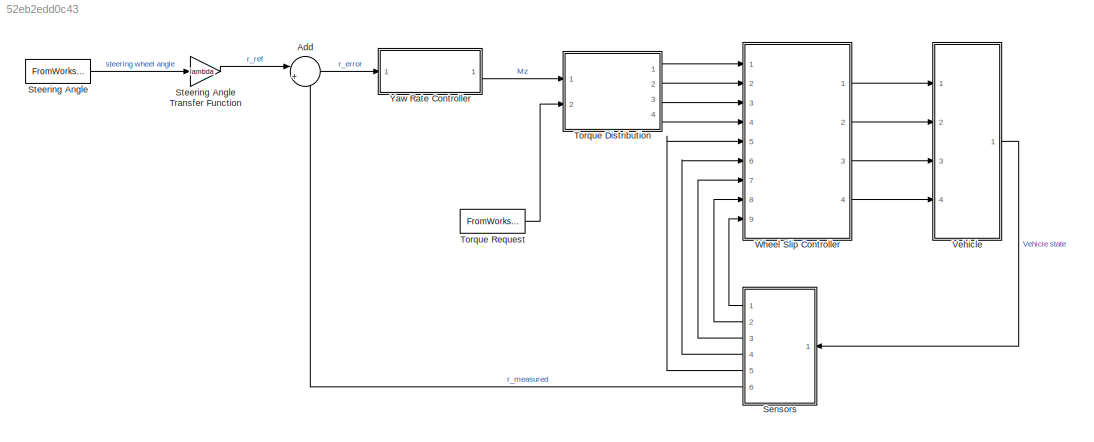
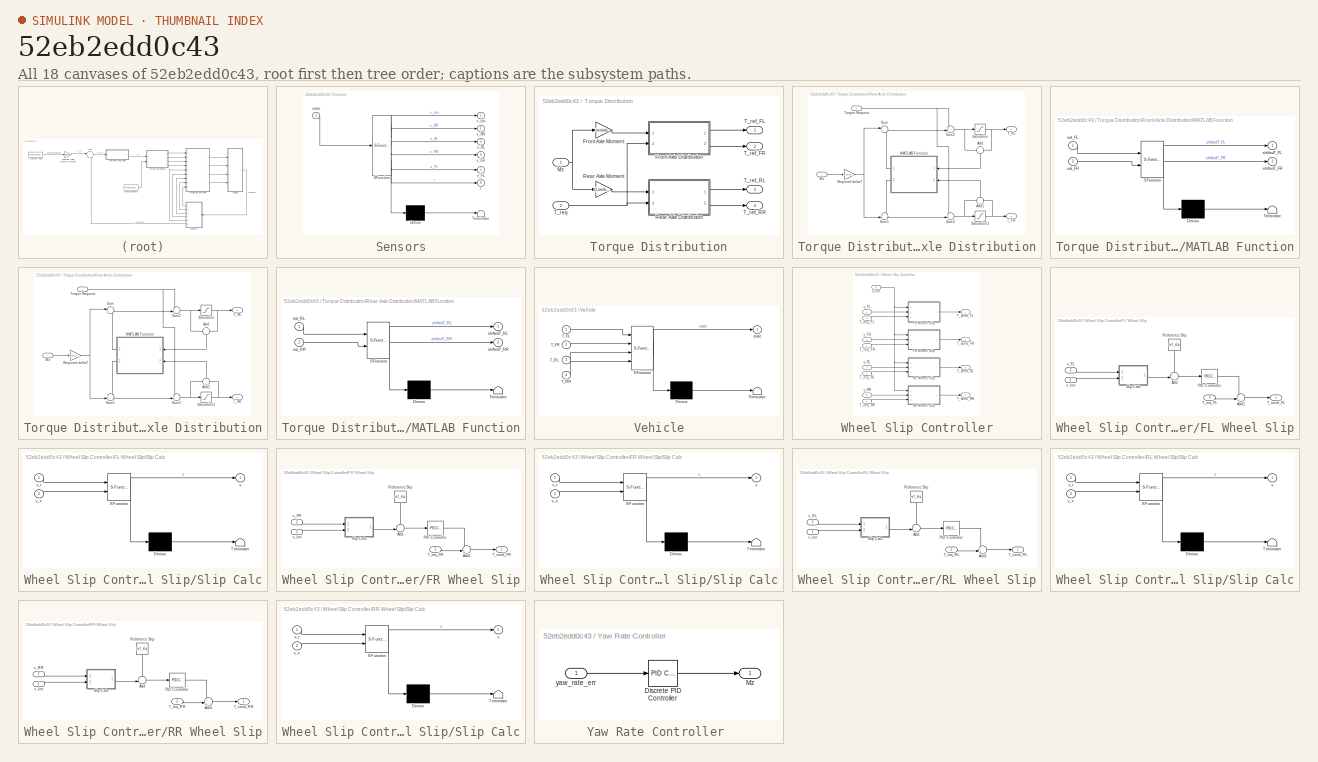
[diagram: thumbnail index - all 18 canvases of the model, root first then tree order]
MODEL slx_52eb2edd0c43
KIND model
CONFIG AbsTol = auto
CONFIG EnableMultiTasking = off
CONFIG FixedStep = auto
CONFIG MaxStep = auto
CONFIG MinStep = auto
CONFIG RelTol = 1e-3
CONFIG SampleTimeConstraint = Unconstrained
CONFIG Solver = VariableStepAuto
CONFIG SolverName = VariableStepAuto
CONFIG StartTime = 0.0
CONFIG StopTime = 10.0
BLOCK [Sum] Add
  IconShape = round
  InputSameDT = off
  Inputs = |+-
  OutDataTypeStr = Inherit: Inherit via internal rule
  Ports = [2, 1]
  SaturateOnIntegerOverflow = off
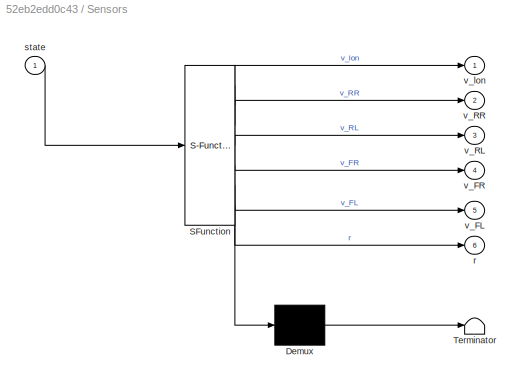
BLOCK [SubSystem] Sensors
  ErrorFcn = Stateflow.Translate.translate
  PermitHierarchicalResolution = ExplicitOnly
  Ports = [1, 6]
  RequestExecContextInheritance = off
  SFBlockType = MATLAB Function
  TreatAsAtomicUnit = on
BLOCK [Demux] Sensors/ Demux 
  Outputs = 1
  Ports = [1, 1]
BLOCK [S-Function] Sensors/ SFunction 
  EnableBusSupport = off
  FunctionName = sf_sfun
  PortCounts = [1 7]
  Ports = [1, 7]
  SFcnIsStateOwnerBlock = off
  SFunctionDeploymentMode = off
  Tag = Stateflow S-Function 8
BLOCK [Terminator] Sensors/ Terminator 
BLOCK [Outport] Sensors/r
  IconDisplay = Port number
  Port = 6
BLOCK [Inport] Sensors/state
  IconDisplay = Port number
BLOCK [Outport] Sensors/v_FL
  IconDisplay = Port number
  Port = 5
BLOCK [Outport] Sensors/v_FR
  IconDisplay = Port number
  Port = 4
BLOCK [Outport] Sensors/v_RL
  IconDisplay = Port number
  Port = 3
BLOCK [Outport] Sensors/v_RR
  IconDisplay = Port number
  Port = 2
BLOCK [Outport] Sensors/v_lon
  IconDisplay = Port number
BLOCK [FromWorkspace] Steering Angle
  Interpolate = off
  SampleTime = 0
  VariableName = simin
  ZeroCross = on
BLOCK [Gain] Steering Angle Transfer Function
  Gain = lambda
  OutDataTypeStr = Inherit: Inherit via internal rule
  ParamDataTypeStr = Inherit: Inherit via internal rule
  SaturateOnIntegerOverflow = off
BLOCK [SubSystem] Torque Distribution
  Ports = [2, 4]
  RequestExecContextInheritance = off
BLOCK [SubSystem] Torque Distribution/Front Axle Distribution
  Ports = [2, 2]
  RequestExecContextInheritance = off
BLOCK [Sum] Torque Distribution/Front Axle Distribution/Add
  IconShape = round
  InputSameDT = off
  Inputs = +|-
  OutDataTypeStr = Inherit: Inherit via internal rule
  Ports = [2, 1]
  SaturateOnIntegerOverflow = off
BLOCK [Sum] Torque Distribution/Front Axle Distribution/Add1
  IconShape = round
  InputSameDT = off
  Inputs = +|-
  OutDataTypeStr = Inherit: Inherit via internal rule
  Ports = [2, 1]
  SaturateOnIntegerOverflow = off
BLOCK [SubSystem] Torque Distribution/Front Axle Distribution/MATLAB Function
  ErrorFcn = Stateflow.Translate.translate
  PermitHierarchicalResolution = ExplicitOnly
  Ports = [2, 2]
  RequestExecContextInheritance = off
  SFBlockType = MATLAB Function
  TreatAsAtomicUnit = on
BLOCK [Demux] Torque Distribution/Front Axle Distribution/MATLAB Function/ Demux 
  Outputs = 1
  Ports = [1, 1]
BLOCK [S-Function] Torque Distribution/Front Axle Distribution/MATLAB Function/ SFunction 
  EnableBusSupport = off
  FunctionName = sf_sfun
  PortCounts = [2 3]
  Ports = [2, 3]
  SFcnIsStateOwnerBlock = off
  SFunctionDeploymentMode = off
  Tag = Stateflow S-Function 5
BLOCK [Terminator] Torque Distribution/Front Axle Distribution/MATLAB Function/ Terminator 
BLOCK [Inport] Torque Distribution/Front Axle Distribution/MATLAB Function/sat_FL
  IconDisplay = Port number
BLOCK [Inport] Torque Distribution/Front Axle Distribution/MATLAB Function/sat_FR
  IconDisplay = Port number
  Port = 2
BLOCK [Outport] Torque Distribution/Front Axle Distribution/MATLAB Function/shiftedT_FL
  IconDisplay = Port number
BLOCK [Outport] Torque Distribution/Front Axle Distribution/MATLAB Function/shiftedT_FR
  IconDisplay = Port number
  Port = 2
BLOCK [Inport] Torque Distribution/Front Axle Distribution/Mz
  IconDisplay = Port number
BLOCK [Gain] Torque Distribution/Front Axle Distribution/Required deltaT
  Gain = (Rd/(2*tr))
  OutDataTypeStr = Inherit: Inherit via internal rule
  ParamDataTypeStr = Inherit: Inherit via internal rule
  SaturateOnIntegerOverflow = off
BLOCK [Saturate] Torque Distribution/Front Axle Distribution/Saturation
  InputPortMap = u0
  LowerLimit = -1000
  Ports = [1, 1]
  UpperLimit = 1000
BLOCK [Saturate] Torque Distribution/Front Axle Distribution/Saturation1
  InputPortMap = u0
  LowerLimit = -1000
  Ports = [1, 1]
  UpperLimit = 1000
BLOCK [Sum] Torque Distribution/Front Axle Distribution/Sum
  IconShape = round
  InputSameDT = off
  Inputs = |+-
  OutDataTypeStr = Inherit: Inherit via internal rule
  Ports = [2, 1]
  SaturateOnIntegerOverflow = off
BLOCK [Sum] Torque Distribution/Front Axle Distribution/Sum1
  IconShape = round
  InputSameDT = off
  Inputs = ++|
  OutDataTypeStr = Inherit: Inherit via internal rule
  Ports = [2, 1]
  SaturateOnIntegerOverflow = off
BLOCK [Sum] Torque Distribution/Front Axle Distribution/Sum2
  IconShape = round
  InputSameDT = off
  Inputs = +-|
  OutDataTypeStr = Inherit: Inherit via internal rule
  Ports = [2, 1]
  SaturateOnIntegerOverflow = off
BLOCK [Sum] Torque Distribution/Front Axle Distribution/Sum3
  IconShape = round
  InputSameDT = off
  Inputs = ++|
  OutDataTypeStr = Inherit: Inherit via internal rule
  Ports = [2, 1]
  SaturateOnIntegerOverflow = off
BLOCK [Outport] Torque Distribution/Front Axle Distribution/T_FL
  IconDisplay = Port number
BLOCK [Outport] Torque Distribution/Front Axle Distribution/T_FR
  IconDisplay = Port number
  Port = 2
BLOCK [Inport] Torque Distribution/Front Axle Distribution/Torque Request
  IconDisplay = Port number
  Port = 2
BLOCK [Gain] Torque Distribution/Front Axle Moment
  Gain = lambda
  OutDataTypeStr = Inherit: Inherit via internal rule
  ParamDataTypeStr = Inherit: Inherit via internal rule
  SaturateOnIntegerOverflow = off
BLOCK [Inport] Torque Distribution/Mz
  IconDisplay = Port number
BLOCK [SubSystem] Torque Distribution/Rear Axle Distribution
  Ports = [2, 2]
  RequestExecContextInheritance = off
BLOCK [Sum] Torque Distribution/Rear Axle Distribution/Add
  IconShape = round
  InputSameDT = off
  Inputs = +|-
  OutDataTypeStr = Inherit: Inherit via internal rule
  Ports = [2, 1]
  SaturateOnIntegerOverflow = off
BLOCK [Sum] Torque Distribution/Rear Axle Distribution/Add1
  IconShape = round
  InputSameDT = off
  Inputs = +|-
  OutDataTypeStr = Inherit: Inherit via internal rule
  Ports = [2, 1]
  SaturateOnIntegerOverflow = off
BLOCK [SubSystem] Torque Distribution/Rear Axle Distribution/MATLAB Function
  ErrorFcn = Stateflow.Translate.translate
  PermitHierarchicalResolution = ExplicitOnly
  Ports = [2, 2]
  RequestExecContextInheritance = off
  SFBlockType = MATLAB Function
  TreatAsAtomicUnit = on
BLOCK [Demux] Torque Distribution/Rear Axle Distribution/MATLAB Function/ Demux 
  Outputs = 1
  Ports = [1, 1]
BLOCK [S-Function] Torque Distribution/Rear Axle Distribution/MATLAB Function/ SFunction 
  EnableBusSupport = off
  FunctionName = sf_sfun
  PortCounts = [2 3]
  Ports = [2, 3]
  SFcnIsStateOwnerBlock = off
  SFunctionDeploymentMode = off
  Tag = Stateflow S-Function 6
BLOCK [Terminator] Torque Distribution/Rear Axle Distribution/MATLAB Function/ Terminator 
BLOCK [Inport] Torque Distribution/Rear Axle Distribution/MATLAB Function/sat_RL
  IconDisplay = Port number
BLOCK [Inport] Torque Distribution/Rear Axle Distribution/MATLAB Function/sat_RR
  IconDisplay = Port number
  Port = 2
BLOCK [Outport] Torque Distribution/Rear Axle Distribution/MATLAB Function/shiftedT_RL
  IconDisplay = Port number
BLOCK [Outport] Torque Distribution/Rear Axle Distribution/MATLAB Function/shiftedT_RR
  IconDisplay = Port number
  Port = 2
BLOCK [Inport] Torque Distribution/Rear Axle Distribution/Mz
  IconDisplay = Port number
BLOCK [Gain] Torque Distribution/Rear Axle Distribution/Required deltaT
  Gain = (Rd/(2*tr))
  OutDataTypeStr = Inherit: Inherit via internal rule
  ParamDataTypeStr = Inherit: Inherit via internal rule
  SaturateOnIntegerOverflow = off
BLOCK [Saturate] Torque Distribution/Rear Axle Distribution/Saturation
  InputPortMap = u0
  LowerLimit = -1000
  Ports = [1, 1]
  UpperLimit = 1000
BLOCK [Saturate] Torque Distribution/Rear Axle Distribution/Saturation1
  InputPortMap = u0
  LowerLimit = -1000
  Ports = [1, 1]
  UpperLimit = 1000
BLOCK [Sum] Torque Distribution/Rear Axle Distribution/Sum
  IconShape = round
  InputSameDT = off
  Inputs = |+-
  OutDataTypeStr = Inherit: Inherit via internal rule
  Ports = [2, 1]
  SaturateOnIntegerOverflow = off
BLOCK [Sum] Torque Distribution/Rear Axle Distribution/Sum1
  IconShape = round
  InputSameDT = off
  Inputs = ++|
  OutDataTypeStr = Inherit: Inherit via internal rule
  Ports = [2, 1]
  SaturateOnIntegerOverflow = off
BLOCK [Sum] Torque Distribution/Rear Axle Distribution/Sum2
  IconShape = round
  InputSameDT = off
  Inputs = +-|
  OutDataTypeStr = Inherit: Inherit via internal rule
  Ports = [2, 1]
  SaturateOnIntegerOverflow = off
BLOCK [Sum] Torque Distribution/Rear Axle Distribution/Sum3
  IconShape = round
  InputSameDT = off
  Inputs = ++|
  OutDataTypeStr = Inherit: Inherit via internal rule
  Ports = [2, 1]
  SaturateOnIntegerOverflow = off
BLOCK [Outport] Torque Distribution/Rear Axle Distribution/T_RL
  IconDisplay = Port number
BLOCK [Outport] Torque Distribution/Rear Axle Distribution/T_RR
  IconDisplay = Port number
  Port = 2
BLOCK [Inport] Torque Distribution/Rear Axle Distribution/Torque Request
  IconDisplay = Port number
  Port = 2
BLOCK [Gain] Torque Distribution/Rear Axle Moment
  Gain = (1-lambda)
  OutDataTypeStr = Inherit: Inherit via internal rule
  ParamDataTypeStr = Inherit: Inherit via internal rule
  SaturateOnIntegerOverflow = off
BLOCK [Outport] Torque Distribution/T_ref_FL
  IconDisplay = Port number
BLOCK [Outport] Torque Distribution/T_ref_FR
  IconDisplay = Port number
  Port = 2
BLOCK [Outport] Torque Distribution/T_ref_RL
  IconDisplay = Port number
  Port = 3
BLOCK [Outport] Torque Distribution/T_ref_RR
  IconDisplay = Port number
  Port = 4
BLOCK [Inport] Torque Distribution/T_req
  IconDisplay = Port number
  Port = 2
BLOCK [FromWorkspace] Torque Request
  SampleTime = 0
  VariableName = simin
  ZeroCross = on
BLOCK [SubSystem] Vehicle
  ErrorFcn = Stateflow.Translate.translate
  PermitHierarchicalResolution = ExplicitOnly
  Ports = [4, 1]
  RequestExecContextInheritance = off
  SFBlockType = MATLAB Function
  TreatAsAtomicUnit = on
BLOCK [Demux] Vehicle/ Demux 
  Outputs = 1
  Ports = [1, 1]
BLOCK [S-Function] Vehicle/ SFunction 
  EnableBusSupport = off
  FunctionName = sf_sfun
  PortCounts = [4 2]
  Ports = [4, 2]
  SFcnIsStateOwnerBlock = off
  SFunctionDeploymentMode = off
  Tag = Stateflow S-Function 7
BLOCK [Terminator] Vehicle/ Terminator 
BLOCK [Inport] Vehicle/T_FL
  IconDisplay = Port number
BLOCK [Inport] Vehicle/T_FR
  IconDisplay = Port number
  Port = 2
BLOCK [Inport] Vehicle/T_RL
  IconDisplay = Port number
  Port = 3
BLOCK [Inport] Vehicle/T_RR
  IconDisplay = Port number
  Port = 4
BLOCK [Outport] Vehicle/state
  IconDisplay = Port number
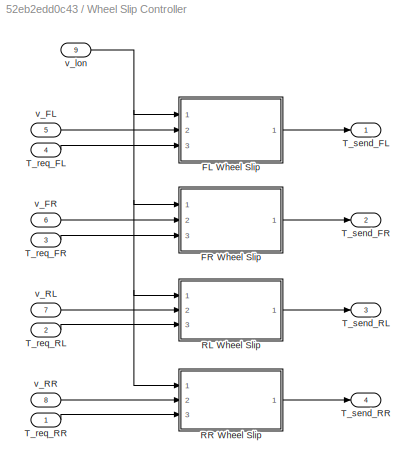
BLOCK [SubSystem] Wheel Slip Controller
  Ports = [9, 4]
  RequestExecContextInheritance = off
BLOCK [SubSystem] Wheel Slip Controller/FL Wheel Slip
  Ports = [3, 1]
  RequestExecContextInheritance = off
BLOCK [Sum] Wheel Slip Controller/FL Wheel Slip/Add
  IconShape = round
  InputSameDT = off
  Inputs = +-|
  OutDataTypeStr = Inherit: Inherit via internal rule
  Ports = [2, 1]
  SaturateOnIntegerOverflow = off
BLOCK [Sum] Wheel Slip Controller/FL Wheel Slip/Add1
  IconShape = round
  InputSameDT = off
  Inputs = ++|
  OutDataTypeStr = Inherit: Inherit via internal rule
  Ports = [2, 1]
  SaturateOnIntegerOverflow = off
BLOCK [Reference] Wheel Slip Controller/FL Wheel Slip/PID Controller  REF=simulink/Continuous/PID Controller
  Ports = [1, 1]
  SourceBlock = simulink/Continuous/PID Controller
  SourceProductBaseCode = SL
  SourceProductName = Simulink
  SourceType = PID 1dof
BLOCK [Constant] Wheel Slip Controller/FL Wheel Slip/Reference Slip 
  Value = ref_slip
BLOCK [SubSystem] Wheel Slip Controller/FL Wheel Slip/Slip Calc
  ErrorFcn = Stateflow.Translate.translate
  PermitHierarchicalResolution = ExplicitOnly
  Ports = [2, 1]
  RequestExecContextInheritance = off
  SFBlockType = MATLAB Function
  TreatAsAtomicUnit = on
BLOCK [Demux] Wheel Slip Controller/FL Wheel Slip/Slip Calc/ Demux 
  Outputs = 1
  Ports = [1, 1]
BLOCK [S-Function] Wheel Slip Controller/FL Wheel Slip/Slip Calc/ SFunction 
  EnableBusSupport = off
  FunctionName = sf_sfun
  PortCounts = [2 2]
  Ports = [2, 2]
  SFcnIsStateOwnerBlock = off
  SFunctionDeploymentMode = off
  Tag = Stateflow S-Function 2
BLOCK [Terminator] Wheel Slip Controller/FL Wheel Slip/Slip Calc/ Terminator 
BLOCK [Outport] Wheel Slip Controller/FL Wheel Slip/Slip Calc/s
  IconDisplay = Port number
BLOCK [Inport] Wheel Slip Controller/FL Wheel Slip/Slip Calc/v_t
  IconDisplay = Port number
BLOCK [Inport] Wheel Slip Controller/FL Wheel Slip/Slip Calc/v_x
  IconDisplay = Port number
  Port = 2
BLOCK [Inport] Wheel Slip Controller/FL Wheel Slip/T_req_FL
  IconDisplay = Port number
  Port = 3
BLOCK [Outport] Wheel Slip Controller/FL Wheel Slip/T_send_FL
  IconDisplay = Port number
BLOCK [Inport] Wheel Slip Controller/FL Wheel Slip/v_FL
  IconDisplay = Port number
  Port = 2
BLOCK [Inport] Wheel Slip Controller/FL Wheel Slip/v_lon
  IconDisplay = Port number
BLOCK [SubSystem] Wheel Slip Controller/FR Wheel Slip
  Ports = [3, 1]
  RequestExecContextInheritance = off
BLOCK [Sum] Wheel Slip Controller/FR Wheel Slip/Add
  IconShape = round
  InputSameDT = off
  Inputs = +-|
  OutDataTypeStr = Inherit: Inherit via internal rule
  Ports = [2, 1]
  SaturateOnIntegerOverflow = off
BLOCK [Sum] Wheel Slip Controller/FR Wheel Slip/Add1
  IconShape = round
  InputSameDT = off
  Inputs = ++|
  OutDataTypeStr = Inherit: Inherit via internal rule
  Ports = [2, 1]
  SaturateOnIntegerOverflow = off
BLOCK [Reference] Wheel Slip Controller/FR Wheel Slip/PID Controller  REF=simulink/Continuous/PID Controller
  Ports = [1, 1]
  SourceBlock = simulink/Continuous/PID Controller
  SourceProductBaseCode = SL
  SourceProductName = Simulink
  SourceType = PID 1dof
BLOCK [Constant] Wheel Slip Controller/FR Wheel Slip/Reference Slip 
  Value = ref_slip
BLOCK [SubSystem] Wheel Slip Controller/FR Wheel Slip/Slip Calc
  ErrorFcn = Stateflow.Translate.translate
  PermitHierarchicalResolution = ExplicitOnly
  Ports = [2, 1]
  RequestExecContextInheritance = off
  SFBlockType = MATLAB Function
  TreatAsAtomicUnit = on
BLOCK [Demux] Wheel Slip Controller/FR Wheel Slip/Slip Calc/ Demux 
  Outputs = 1
  Ports = [1, 1]
BLOCK [S-Function] Wheel Slip Controller/FR Wheel Slip/Slip Calc/ SFunction 
  EnableBusSupport = off
  FunctionName = sf_sfun
  PortCounts = [2 2]
  Ports = [2, 2]
  SFcnIsStateOwnerBlock = off
  SFunctionDeploymentMode = off
  Tag = Stateflow S-Function 4
BLOCK [Terminator] Wheel Slip Controller/FR Wheel Slip/Slip Calc/ Terminator 
BLOCK [Outport] Wheel Slip Controller/FR Wheel Slip/Slip Calc/s
  IconDisplay = Port number
BLOCK [Inport] Wheel Slip Controller/FR Wheel Slip/Slip Calc/v_t
  IconDisplay = Port number
BLOCK [Inport] Wheel Slip Controller/FR Wheel Slip/Slip Calc/v_x
  IconDisplay = Port number
  Port = 2
BLOCK [Inport] Wheel Slip Controller/FR Wheel Slip/T_req_FR
  IconDisplay = Port number
  Port = 3
BLOCK [Outport] Wheel Slip Controller/FR Wheel Slip/T_send_FR
  IconDisplay = Port number
BLOCK [Inport] Wheel Slip Controller/FR Wheel Slip/v_FR
  IconDisplay = Port number
  Port = 2
BLOCK [Inport] Wheel Slip Controller/FR Wheel Slip/v_lon
  IconDisplay = Port number
BLOCK [SubSystem] Wheel Slip Controller/RL Wheel Slip
  Ports = [3, 1]
  RequestExecContextInheritance = off
BLOCK [Sum] Wheel Slip Controller/RL Wheel Slip/Add
  IconShape = round
  InputSameDT = off
  Inputs = +-|
  OutDataTypeStr = Inherit: Inherit via internal rule
  Ports = [2, 1]
  SaturateOnIntegerOverflow = off
BLOCK [Sum] Wheel Slip Controller/RL Wheel Slip/Add1
  IconShape = round
  InputSameDT = off
  Inputs = ++|
  OutDataTypeStr = Inherit: Inherit via internal rule
  Ports = [2, 1]
  SaturateOnIntegerOverflow = off
BLOCK [Reference] Wheel Slip Controller/RL Wheel Slip/PID Controller  REF=simulink/Continuous/PID Controller
  Ports = [1, 1]
  SourceBlock = simulink/Continuous/PID Controller
  SourceProductBaseCode = SL
  SourceProductName = Simulink
  SourceType = PID 1dof
BLOCK [Constant] Wheel Slip Controller/RL Wheel Slip/Reference Slip 
  Value = ref_slip
BLOCK [SubSystem] Wheel Slip Controller/RL Wheel Slip/Slip Calc
  ErrorFcn = Stateflow.Translate.translate
  PermitHierarchicalResolution = ExplicitOnly
  Ports = [2, 1]
  RequestExecContextInheritance = off
  SFBlockType = MATLAB Function
  TreatAsAtomicUnit = on
BLOCK [Demux] Wheel Slip Controller/RL Wheel Slip/Slip Calc/ Demux 
  Outputs = 1
  Ports = [1, 1]
BLOCK [S-Function] Wheel Slip Controller/RL Wheel Slip/Slip Calc/ SFunction 
  EnableBusSupport = off
  FunctionName = sf_sfun
  PortCounts = [2 2]
  Ports = [2, 2]
  SFcnIsStateOwnerBlock = off
  SFunctionDeploymentMode = off
  Tag = Stateflow S-Function 3
BLOCK [Terminator] Wheel Slip Controller/RL Wheel Slip/Slip Calc/ Terminator 
BLOCK [Outport] Wheel Slip Controller/RL Wheel Slip/Slip Calc/s
  IconDisplay = Port number
BLOCK [Inport] Wheel Slip Controller/RL Wheel Slip/Slip Calc/v_t
  IconDisplay = Port number
BLOCK [Inport] Wheel Slip Controller/RL Wheel Slip/Slip Calc/v_x
  IconDisplay = Port number
  Port = 2
BLOCK [Inport] Wheel Slip Controller/RL Wheel Slip/T_req_RL
  IconDisplay = Port number
  Port = 3
BLOCK [Outport] Wheel Slip Controller/RL Wheel Slip/T_send_RL
  IconDisplay = Port number
BLOCK [Inport] Wheel Slip Controller/RL Wheel Slip/v_RL
  IconDisplay = Port number
  Port = 2
BLOCK [Inport] Wheel Slip Controller/RL Wheel Slip/v_lon
  IconDisplay = Port number
BLOCK [SubSystem] Wheel Slip Controller/RR Wheel Slip
  Ports = [3, 1]
  RequestExecContextInheritance = off
BLOCK [Sum] Wheel Slip Controller/RR Wheel Slip/Add
  IconShape = round
  InputSameDT = off
  Inputs = +-|
  OutDataTypeStr = Inherit: Inherit via internal rule
  Ports = [2, 1]
  SaturateOnIntegerOverflow = off
BLOCK [Sum] Wheel Slip Controller/RR Wheel Slip/Add1
  IconShape = round
  InputSameDT = off
  Inputs = ++|
  OutDataTypeStr = Inherit: Inherit via internal rule
  Ports = [2, 1]
  SaturateOnIntegerOverflow = off
BLOCK [Reference] Wheel Slip Controller/RR Wheel Slip/PID Controller  REF=simulink/Continuous/PID Controller
  Ports = [1, 1]
  SourceBlock = simulink/Continuous/PID Controller
  SourceProductBaseCode = SL
  SourceProductName = Simulink
  SourceType = PID 1dof
BLOCK [Constant] Wheel Slip Controller/RR Wheel Slip/Reference Slip 
  Value = ref_slip
BLOCK [SubSystem] Wheel Slip Controller/RR Wheel Slip/Slip Calc
  ErrorFcn = Stateflow.Translate.translate
  PermitHierarchicalResolution = ExplicitOnly
  Ports = [2, 1]
  RequestExecContextInheritance = off
  SFBlockType = MATLAB Function
  TreatAsAtomicUnit = on
BLOCK [Demux] Wheel Slip Controller/RR Wheel Slip/Slip Calc/ Demux 
  Outputs = 1
  Ports = [1, 1]
BLOCK [S-Function] Wheel Slip Controller/RR Wheel Slip/Slip Calc/ SFunction 
  EnableBusSupport = off
  FunctionName = sf_sfun
  PortCounts = [2 2]
  Ports = [2, 2]
  SFcnIsStateOwnerBlock = off
  SFunctionDeploymentMode = off
  Tag = Stateflow S-Function 1
BLOCK [Terminator] Wheel Slip Controller/RR Wheel Slip/Slip Calc/ Terminator 
BLOCK [Outport] Wheel Slip Controller/RR Wheel Slip/Slip Calc/s
  IconDisplay = Port number
BLOCK [Inport] Wheel Slip Controller/RR Wheel Slip/Slip Calc/v_t
  IconDisplay = Port number
BLOCK [Inport] Wheel Slip Controller/RR Wheel Slip/Slip Calc/v_x
  IconDisplay = Port number
  Port = 2
BLOCK [Inport] Wheel Slip Controller/RR Wheel Slip/T_req_RR
  IconDisplay = Port number
  Port = 3
BLOCK [Outport] Wheel Slip Controller/RR Wheel Slip/T_send_RR
  IconDisplay = Port number
BLOCK [Inport] Wheel Slip Controller/RR Wheel Slip/v_RR
  IconDisplay = Port number
  Port = 2
BLOCK [Inport] Wheel Slip Controller/RR Wheel Slip/v_lon
  IconDisplay = Port number
BLOCK [Inport] Wheel Slip Controller/T_req_FL
  IconDisplay = Port number
  Port = 4
BLOCK [Inport] Wheel Slip Controller/T_req_FR
  IconDisplay = Port number
  Port = 3
BLOCK [Inport] Wheel Slip Controller/T_req_RL
  IconDisplay = Port number
  Port = 2
BLOCK [Inport] Wheel Slip Controller/T_req_RR
  IconDisplay = Port number
BLOCK [Outport] Wheel Slip Controller/T_send_FL
  IconDisplay = Port number
BLOCK [Outport] Wheel Slip Controller/T_send_FR
  IconDisplay = Port number
  Port = 2
BLOCK [Outport] Wheel Slip Controller/T_send_RL
  IconDisplay = Port number
  Port = 3
BLOCK [Outport] Wheel Slip Controller/T_send_RR
  IconDisplay = Port number
  Port = 4
BLOCK [Inport] Wheel Slip Controller/v_FL
  IconDisplay = Port number
  Port = 5
BLOCK [Inport] Wheel Slip Controller/v_FR
  IconDisplay = Port number
  Port = 6
BLOCK [Inport] Wheel Slip Controller/v_RL
  IconDisplay = Port number
  Port = 7
BLOCK [Inport] Wheel Slip Controller/v_RR
  IconDisplay = Port number
  Port = 8
BLOCK [Inport] Wheel Slip Controller/v_lon
  IconDisplay = Port number
  Port = 9
BLOCK [SubSystem] Yaw Rate Controller 
  Ports = [1, 1]
  RequestExecContextInheritance = off
BLOCK [Reference] Yaw Rate Controller /Discrete PID Controller  REF=simulink/Continuous/PID Controller
  Ports = [1, 1]
  SourceBlock = simulink/Continuous/PID Controller
  SourceProductBaseCode = SL
  SourceProductName = Simulink
  SourceType = PID 1dof
BLOCK [Outport] Yaw Rate Controller /Mz
  IconDisplay = Port number
BLOCK [Inport] Yaw Rate Controller /yaw_rate_err
  IconDisplay = Port number
LINE Add:1 -> Yaw Rate Controller :1
LINE Sensors:1 -> Wheel Slip Controller:9
LINE Sensors:2 -> Wheel Slip Controller:8
LINE Sensors:3 -> Wheel Slip Controller:7
LINE Sensors:4 -> Wheel Slip Controller:6
LINE Sensors:5 -> Wheel Slip Controller:5
LINE Sensors:6 -> Add:2
LINE Steering Angle Transfer Function:1 -> Add:1
LINE Steering Angle:1 -> Steering Angle Transfer Function:1
LINE Torque Distribution/Front Axle Distribution/Add1:1 -> Torque Distribution/Front Axle Distribution/MATLAB Function:2
LINE Torque Distribution/Front Axle Distribution/Add:1 -> Torque Distribution/Front Axle Distribution/MATLAB Function:1
LINE Torque Distribution/Front Axle Distribution/MATLAB Function:1 -> Torque Distribution/Front Axle Distribution/Sum:2
LINE Torque Distribution/Front Axle Distribution/MATLAB Function:2 -> Torque Distribution/Front Axle Distribution/Sum1:1
LINE Torque Distribution/Front Axle Distribution/Mz:1 -> Torque Distribution/Front Axle Distribution/Required deltaT:1
NET Torque Distribution/Front Axle Distribution/Required deltaT:1 -> Torque Distribution/Front Axle Distribution/Sum1:2, Torque Distribution/Front Axle Distribution/Sum:1
NET Torque Distribution/Front Axle Distribution/Saturation1:1 -> Torque Distribution/Front Axle Distribution/Add1:2, Torque Distribution/Front Axle Distribution/T_FR:1
NET Torque Distribution/Front Axle Distribution/Saturation:1 -> Torque Distribution/Front Axle Distribution/Add:2, Torque Distribution/Front Axle Distribution/T_FL:1
LINE Torque Distribution/Front Axle Distribution/Sum1:1 -> Torque Distribution/Front Axle Distribution/Sum3:2
NET Torque Distribution/Front Axle Distribution/Sum2:1 -> Torque Distribution/Front Axle Distribution/Add:1, Torque Distribution/Front Axle Distribution/Saturation:1
NET Torque Distribution/Front Axle Distribution/Sum3:1 -> Torque Distribution/Front Axle Distribution/Add1:1, Torque Distribution/Front Axle Distribution/Saturation1:1
LINE Torque Distribution/Front Axle Distribution/Sum:1 -> Torque Distribution/Front Axle Distribution/Sum2:2
NET Torque Distribution/Front Axle Distribution/Torque Request:1 -> Torque Distribution/Front Axle Distribution/Sum2:1, Torque Distribution/Front Axle Distribution/Sum3:1
LINE Torque Distribution/Front Axle Distribution:1 -> Torque Distribution/T_ref_FL:1
LINE Torque Distribution/Front Axle Distribution:2 -> Torque Distribution/T_ref_FR:1
LINE Torque Distribution/Front Axle Moment:1 -> Torque Distribution/Front Axle Distribution:1
NET Torque Distribution/Mz:1 -> Torque Distribution/Front Axle Moment:1, Torque Distribution/Rear Axle Moment:1
LINE Torque Distribution/Rear Axle Distribution/Add1:1 -> Torque Distribution/Rear Axle Distribution/MATLAB Function:2
LINE Torque Distribution/Rear Axle Distribution/Add:1 -> Torque Distribution/Rear Axle Distribution/MATLAB Function:1
LINE Torque Distribution/Rear Axle Distribution/MATLAB Function:1 -> Torque Distribution/Rear Axle Distribution/Sum:2
LINE Torque Distribution/Rear Axle Distribution/MATLAB Function:2 -> Torque Distribution/Rear Axle Distribution/Sum1:1
LINE Torque Distribution/Rear Axle Distribution/Mz:1 -> Torque Distribution/Rear Axle Distribution/Required deltaT:1
NET Torque Distribution/Rear Axle Distribution/Required deltaT:1 -> Torque Distribution/Rear Axle Distribution/Sum1:2, Torque Distribution/Rear Axle Distribution/Sum:1
NET Torque Distribution/Rear Axle Distribution/Saturation1:1 -> Torque Distribution/Rear Axle Distribution/Add1:2, Torque Distribution/Rear Axle Distribution/T_RR:1
NET Torque Distribution/Rear Axle Distribution/Saturation:1 -> Torque Distribution/Rear Axle Distribution/Add:2, Torque Distribution/Rear Axle Distribution/T_RL:1
LINE Torque Distribution/Rear Axle Distribution/Sum1:1 -> Torque Distribution/Rear Axle Distribution/Sum3:2
NET Torque Distribution/Rear Axle Distribution/Sum2:1 -> Torque Distribution/Rear Axle Distribution/Add:1, Torque Distribution/Rear Axle Distribution/Saturation:1
NET Torque Distribution/Rear Axle Distribution/Sum3:1 -> Torque Distribution/Rear Axle Distribution/Add1:1, Torque Distribution/Rear Axle Distribution/Saturation1:1
LINE Torque Distribution/Rear Axle Distribution/Sum:1 -> Torque Distribution/Rear Axle Distribution/Sum2:2
NET Torque Distribution/Rear Axle Distribution/Torque Request:1 -> Torque Distribution/Rear Axle Distribution/Sum2:1, Torque Distribution/Rear Axle Distribution/Sum3:1
LINE Torque Distribution/Rear Axle Distribution:1 -> Torque Distribution/T_ref_RL:1
LINE Torque Distribution/Rear Axle Distribution:2 -> Torque Distribution/T_ref_RR:1
LINE Torque Distribution/Rear Axle Moment:1 -> Torque Distribution/Rear Axle Distribution:1
NET Torque Distribution/T_req:1 -> Torque Distribution/Front Axle Distribution:2, Torque Distribution/Rear Axle Distribution:2
LINE Torque Distribution:1 -> Wheel Slip Controller:1
LINE Torque Distribution:2 -> Wheel Slip Controller:2
LINE Torque Distribution:3 -> Wheel Slip Controller:3
LINE Torque Distribution:4 -> Wheel Slip Controller:4
LINE Torque Request:1 -> Torque Distribution:2
LINE Vehicle:1 -> Sensors:1
LINE Wheel Slip Controller/FL Wheel Slip/Add1:1 -> Wheel Slip Controller/FL Wheel Slip/T_send_FL:1
LINE Wheel Slip Controller/FL Wheel Slip/Add:1 -> Wheel Slip Controller/FL Wheel Slip/PID Controller:1
LINE Wheel Slip Controller/FL Wheel Slip/PID Controller:1 -> Wheel Slip Controller/FL Wheel Slip/Add1:1
LINE Wheel Slip Controller/FL Wheel Slip/Reference Slip :1 -> Wheel Slip Controller/FL Wheel Slip/Add:1
LINE Wheel Slip Controller/FL Wheel Slip/Slip Calc:1 -> Wheel Slip Controller/FL Wheel Slip/Add:2
LINE Wheel Slip Controller/FL Wheel Slip/T_req_FL:1 -> Wheel Slip Controller/FL Wheel Slip/Add1:2
LINE Wheel Slip Controller/FL Wheel Slip/v_FL:1 -> Wheel Slip Controller/FL Wheel Slip/Slip Calc:1
LINE Wheel Slip Controller/FL Wheel Slip/v_lon:1 -> Wheel Slip Controller/FL Wheel Slip/Slip Calc:2
LINE Wheel Slip Controller/FL Wheel Slip:1 -> Wheel Slip Controller/T_send_FL:1
LINE Wheel Slip Controller/FR Wheel Slip/Add1:1 -> Wheel Slip Controller/FR Wheel Slip/T_send_FR:1
LINE Wheel Slip Controller/FR Wheel Slip/Add:1 -> Wheel Slip Controller/FR Wheel Slip/PID Controller:1
LINE Wheel Slip Controller/FR Wheel Slip/PID Controller:1 -> Wheel Slip Controller/FR Wheel Slip/Add1:1
LINE Wheel Slip Controller/FR Wheel Slip/Reference Slip :1 -> Wheel Slip Controller/FR Wheel Slip/Add:1
LINE Wheel Slip Controller/FR Wheel Slip/Slip Calc:1 -> Wheel Slip Controller/FR Wheel Slip/Add:2
LINE Wheel Slip Controller/FR Wheel Slip/T_req_FR:1 -> Wheel Slip Controller/FR Wheel Slip/Add1:2
LINE Wheel Slip Controller/FR Wheel Slip/v_FR:1 -> Wheel Slip Controller/FR Wheel Slip/Slip Calc:1
LINE Wheel Slip Controller/FR Wheel Slip/v_lon:1 -> Wheel Slip Controller/FR Wheel Slip/Slip Calc:2
LINE Wheel Slip Controller/FR Wheel Slip:1 -> Wheel Slip Controller/T_send_FR:1
LINE Wheel Slip Controller/RL Wheel Slip/Add1:1 -> Wheel Slip Controller/RL Wheel Slip/T_send_RL:1
LINE Wheel Slip Controller/RL Wheel Slip/Add:1 -> Wheel Slip Controller/RL Wheel Slip/PID Controller:1
LINE Wheel Slip Controller/RL Wheel Slip/PID Controller:1 -> Wheel Slip Controller/RL Wheel Slip/Add1:1
LINE Wheel Slip Controller/RL Wheel Slip/Reference Slip :1 -> Wheel Slip Controller/RL Wheel Slip/Add:1
LINE Wheel Slip Controller/RL Wheel Slip/Slip Calc:1 -> Wheel Slip Controller/RL Wheel Slip/Add:2
LINE Wheel Slip Controller/RL Wheel Slip/T_req_RL:1 -> Wheel Slip Controller/RL Wheel Slip/Add1:2
LINE Wheel Slip Controller/RL Wheel Slip/v_RL:1 -> Wheel Slip Controller/RL Wheel Slip/Slip Calc:1
LINE Wheel Slip Controller/RL Wheel Slip/v_lon:1 -> Wheel Slip Controller/RL Wheel Slip/Slip Calc:2
LINE Wheel Slip Controller/RL Wheel Slip:1 -> Wheel Slip Controller/T_send_RL:1
LINE Wheel Slip Controller/RR Wheel Slip/Add1:1 -> Wheel Slip Controller/RR Wheel Slip/T_send_RR:1
LINE Wheel Slip Controller/RR Wheel Slip/Add:1 -> Wheel Slip Controller/RR Wheel Slip/PID Controller:1
LINE Wheel Slip Controller/RR Wheel Slip/PID Controller:1 -> Wheel Slip Controller/RR Wheel Slip/Add1:1
LINE Wheel Slip Controller/RR Wheel Slip/Reference Slip :1 -> Wheel Slip Controller/RR Wheel Slip/Add:1
LINE Wheel Slip Controller/RR Wheel Slip/Slip Calc:1 -> Wheel Slip Controller/RR Wheel Slip/Add:2
LINE Wheel Slip Controller/RR Wheel Slip/T_req_RR:1 -> Wheel Slip Controller/RR Wheel Slip/Add1:2
LINE Wheel Slip Controller/RR Wheel Slip/v_RR:1 -> Wheel Slip Controller/RR Wheel Slip/Slip Calc:1
LINE Wheel Slip Controller/RR Wheel Slip/v_lon:1 -> Wheel Slip Controller/RR Wheel Slip/Slip Calc:2
LINE Wheel Slip Controller/RR Wheel Slip:1 -> Wheel Slip Controller/T_send_RR:1
LINE Wheel Slip Controller/T_req_FL:1 -> Wheel Slip Controller/FL Wheel Slip:3
LINE Wheel Slip Controller/T_req_FR:1 -> Wheel Slip Controller/FR Wheel Slip:3
LINE Wheel Slip Controller/T_req_RL:1 -> Wheel Slip Controller/RL Wheel Slip:3
LINE Wheel Slip Controller/T_req_RR:1 -> Wheel Slip Controller/RR Wheel Slip:3
LINE Wheel Slip Controller/v_FL:1 -> Wheel Slip Controller/FL Wheel Slip:2
LINE Wheel Slip Controller/v_FR:1 -> Wheel Slip Controller/FR Wheel Slip:2
LINE Wheel Slip Controller/v_RL:1 -> Wheel Slip Controller/RL Wheel Slip:2
LINE Wheel Slip Controller/v_RR:1 -> Wheel Slip Controller/RR Wheel Slip:2
NET Wheel Slip Controller/v_lon:1 -> Wheel Slip Controller/FL Wheel Slip:1, Wheel Slip Controller/FR Wheel Slip:1, Wheel Slip Controller/RL Wheel Slip:1, Wheel Slip Controller/RR Wheel Slip:1
LINE Wheel Slip Controller:1 -> Vehicle:1
LINE Wheel Slip Controller:2 -> Vehicle:2
LINE Wheel Slip Controller:3 -> Vehicle:3
LINE Wheel Slip Controller:4 -> Vehicle:4
LINE Yaw Rate Controller /Discrete PID Controller:1 -> Yaw Rate Controller /Mz:1
LINE Yaw Rate Controller /yaw_rate_err:1 -> Yaw Rate Controller /Discrete PID Controller:1
LINE Yaw Rate Controller :1 -> Torque Distribution:1
note: NET lines group one-source signal fan-out (src -> all destinations, sorted); 1:1 wires keep LINE
CHART Wheel Slip Controller/RR Wheel Slip/Slip Calc states=1 transitions=1
  STATE_LABEL 'eML_blk_kernel()'
  STATE_LABEL 'SCRIPT:\nfunction s = fcn(v_t, v_x)\n\ns = (v_t - v_x)/v_t;\n'
CHART Wheel Slip Controller/FL Wheel Slip/Slip Calc states=1 transitions=1
  STATE_LABEL 'eML_blk_kernel()'
  STATE_LABEL 'SCRIPT:\nfunction s = fcn(v_t, v_x)\n\ns = (v_t - v_x)/v_t;\n'
CHART Wheel Slip Controller/RL Wheel Slip/Slip Calc states=1 transitions=1
  STATE_LABEL 'eML_blk_kernel()'
  STATE_LABEL 'SCRIPT:\nfunction s = fcn(v_t, v_x)\n\ns = (v_t - v_x)/v_t;\n'
CHART Wheel Slip Controller/FR Wheel Slip/Slip Calc states=1 transitions=1
  STATE_LABEL 'eML_blk_kernel()'
  STATE_LABEL 'SCRIPT:\nfunction s = fcn(v_t, v_x)\n\ns = (v_t - v_x)/v_t;\n'
CHART Torque
Distribution/Front Axle 
Distribution/MATLAB Function states=1 transitions=1
  STATE_LABEL 'eML_blk_kernel()'
  STATE_LABEL 'SCRIPT:\nfunction [shiftedT_FL,shiftedT_FR] = transferSaturatedTorqueFront(sat_FL,sat_FR)\n% sends oversaturated parts of wheel torques to the opposite wheel,\n% depending which wheel is more saturated.\n\n% Function assumes the requested torques (from APPS) were within saturation\n% limits before torque vectoring torques were applied\n\nshiftedT_FL = 0;\nshiftedT_FR = 0;\n\nif sat_FL > sat_FR\n    shiftedT_F...<+67ch>'
CHART Torque
Distribution/Rear Axle 
Distribution/MATLAB Function states=1 transitions=1
  STATE_LABEL 'eML_blk_kernel()'
  STATE_LABEL 'SCRIPT:\nfunction [shiftedT_RL,shiftedT_RR] = transferSaturatedTorqueRear(sat_RL,sat_RR)\n% sends oversaturated parts of wheel torques to the opposite wheel,\n% depending which wheel is more saturated.\n\n% Function assumes the requested torques (from APPS) were within saturation\n% limits before torque vectoring torques were applied\n\nshiftedT_RL = 0;\nshiftedT_RR = 0;\n\nif sat_FL > sat_RR\n    shiftedT_RR...<+66ch>'
CHART Vehicle states=1 transitions=1
  STATE_LABEL 'eML_blk_kernel()'
  STATE_LABEL 'SCRIPT:\nfunction state = fcn(T_FL,T_FR,T_RL,T_RR)\n\ny = u;\n'
CHART Sensors states=1 transitions=1
  STATE_LABEL 'eML_blk_kernel()'
  STATE_LABEL 'SCRIPT:\nfunction [v_lon,v_RR,v_RL,v_FR,v_FL, r] = fcn(state)\n\ny = u;\n'
